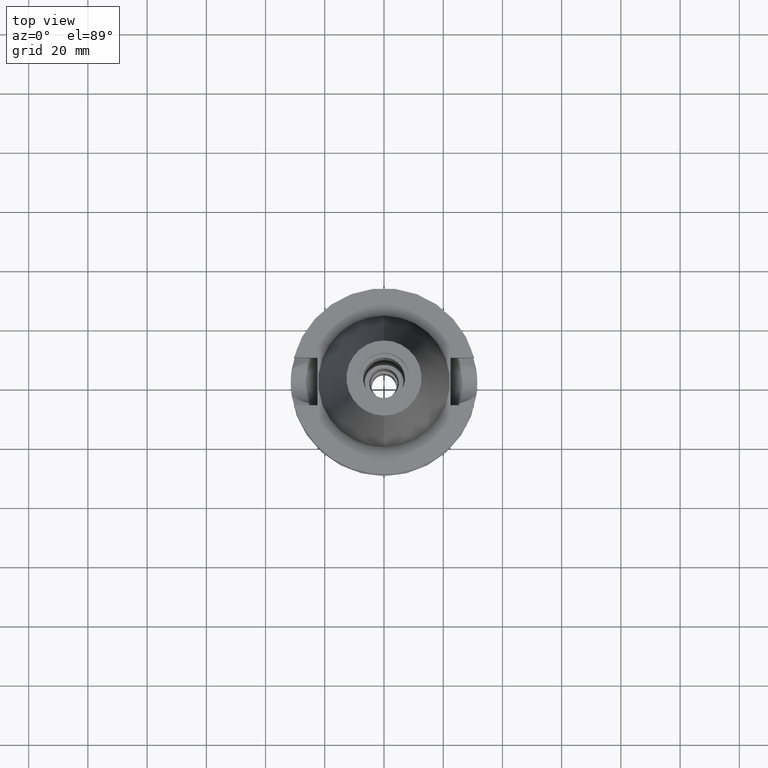
[diagram: clean part render]
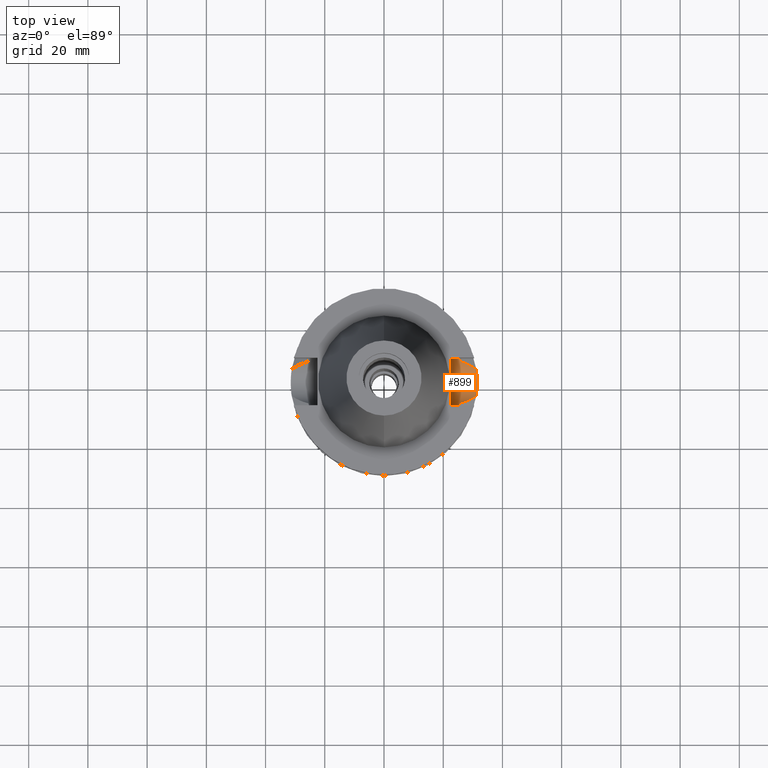
[diagram: same view with one face highlighted and labeled with its STEP entity id]
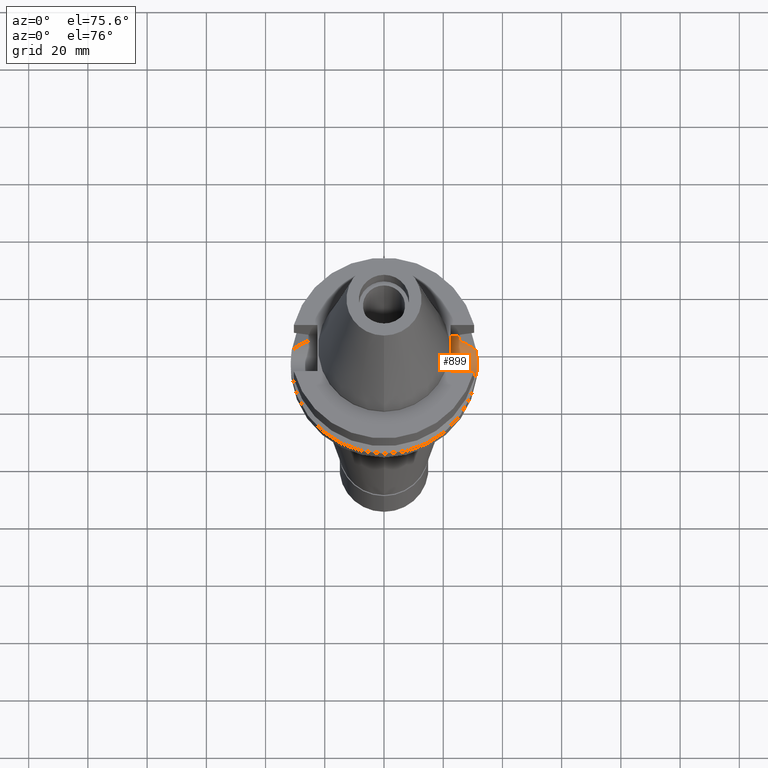
[diagram: same view with one face highlighted and labeled with its STEP entity id]
A machine part, top view. The second image highlights one B-rep face of the part: STEP entity #899.
A second angle (auxiliary view) of the same face is appended — the face is thin or edge-on in the first view.
In plain terms, the highlighted cylindrical surface (edge-blend (fillet) strip) has radius 8.05 mm, axis along (1, 0, 0).
Its self-contained STEP definition (entity closure, byte-faithful):
#8 = CARTESIAN_POINT ( 'NONE',  ( 25.34387967354658855, 7.742345491376021016, -17.15662736174668979 ) ) ;
#23 = CIRCLE ( 'NONE', #2914, 8.050000000000000711 ) ;
#25 = CARTESIAN_POINT ( 'NONE',  ( 25.32419265906722927, 7.806329682138427373, -16.91574545218137615 ) ) ;
#51 = CARTESIAN_POINT ( 'NONE',  ( 31.42560527174269325, 2.162789075934695937, -22.70431026641033867 ) ) ;
#66 = CARTESIAN_POINT ( 'NONE',  ( 31.50000000000000000, 0.0000000000000000000, -23.00000000000000000 ) ) ;
#71 = CARTESIAN_POINT ( 'NONE',  ( 25.31954463780458653, -7.821394976198483562, -16.85491936549449221 ) ) ;
#137 = CARTESIAN_POINT ( 'NONE',  ( 28.60281164125413156, 5.996925309231885493, -20.32023356486955734 ) ) ;
#160 = EDGE_CURVE ( 'NONE', #1030, #1170, #2405, .T. ) ;
#234 = CARTESIAN_POINT ( 'NONE',  ( 25.27269246206562414, 7.973290322427805776, -16.24535685338602775 ) ) ;
#247 = VERTEX_POINT ( 'NONE', #298 ) ;
#249 = B_SPLINE_CURVE_WITH_KNOTS ( 'NONE', 3,
 ( #1088, #2222, #2699, #2061, #390, #3033, #1522, #1263, #2308, #2568, #1502, #2460, #137, #281, #1109, #1010 ),
 .UNSPECIFIED., .F., .F.,
 ( 4, 2, 2, 1, 1, 1, 1, 2, 2, 4 ),
 ( 0.0000000000000000000, 0.2499999999999679701, 0.3749999999999515388, 0.4374999999999436562, 0.4687499999999404365, 0.4843749999999382161, 0.4921874999999374389, 0.4960937499999378275, 0.4999999999999382716, 1.000000000000000000 ),
 .UNSPECIFIED. ) ;
#281 = CARTESIAN_POINT ( 'NONE',  ( 27.72592601166588722, 6.397601523422141057, -19.87227811873450278 ) ) ;
#285 = CARTESIAN_POINT ( 'NONE',  ( 25.30215616128704781, -7.877576232114722465, -16.61085564858986174 ) ) ;
#286 = B_SPLINE_CURVE_WITH_KNOTS ( 'NONE', 3,
 ( #1945, #1015, #1002, #2659, #2937, #1744, #285, #2073, #2988, #71, #828, #2735, #365, #2545 ),
 .UNSPECIFIED., .F., .F.,
 ( 4, 2, 2, 1, 1, 2, 2, 4 ),
 ( 0.0000000000000000000, 0.2499999999999805156, 0.3749999999999708011, 0.4374999999999658051, 0.4687499999999645839, 0.4843749999999652500, 0.4999999999999659162, 1.000000000000000000 ),
 .UNSPECIFIED. ) ;
#298 = CARTESIAN_POINT ( 'NONE',  ( 25.24772266958000344, -8.050000000000000711, -14.94999999999999929 ) ) ;
#311 = CARTESIAN_POINT ( 'NONE',  ( 26.70215822531835315, -6.750114391386322410, -19.34856662920262238 ) ) ;
#365 = CARTESIAN_POINT ( 'NONE',  ( 25.43788636140663684, -7.435506143574531990, -18.11669712823283618 ) ) ;
#390 = CARTESIAN_POINT ( 'NONE',  ( 29.56219469152734192, 5.521670263423405167, -20.81027375416237390 ) ) ;
#392 = ORIENTED_EDGE ( 'NONE', *, *, #1217, .T. ) ;
#407 = VERTEX_POINT ( 'NONE', #777 ) ;
#437 = EDGE_CURVE ( 'NONE', #1170, #902, #249, .T. ) ;
#439 = CARTESIAN_POINT ( 'NONE',  ( 31.50000000000000000, 0.0000000000000000000, -23.00000000000000000 ) ) ;
#447 = CARTESIAN_POINT ( 'NONE',  ( 25.33292553851903151, 7.777985707518505265, -17.02558215514781992 ) ) ;
#449 = CARTESIAN_POINT ( 'NONE',  ( 31.17899877608999759, -4.485536235554000051, -21.63449434733000132 ) ) ;
#458 = CARTESIAN_POINT ( 'NONE',  ( 25.24772266957998923, 8.049999999999998934, -15.58999073683360237 ) ) ;
#471 = CARTESIAN_POINT ( 'NONE',  ( 25.24772266958000344, 8.050000000000000711, -14.94999999999999929 ) ) ;
#483 = ORIENTED_EDGE ( 'NONE', *, *, #2573, .T. ) ;
#550 = LINE ( 'NONE', #1017, #631 ) ;
#616 = CARTESIAN_POINT ( 'NONE',  ( 25.53175183775000079, 7.097862220092999941, -18.74774300138999905 ) ) ;
#631 = VECTOR ( 'NONE', #2752, 1000.000000000000000 ) ;
#637 = CARTESIAN_POINT ( 'NONE',  ( 28.28552704200448531, -6.138958294274154959, -20.15830002520382180 ) ) ;
#640 = CARTESIAN_POINT ( 'NONE',  ( 22.50000000000000000, 8.050000000000000711, -14.94999999999999929 ) ) ;
#659 = DIRECTION ( 'NONE',  ( 1.000000000000000000, -1.551559937893000172E-14, 0.0000000000000000000 ) ) ;
#684 = CARTESIAN_POINT ( 'NONE',  ( 25.44392473217112283, 7.408251102527441567, -18.11706870839242001 ) ) ;
#696 = CARTESIAN_POINT ( 'NONE',  ( 31.41021000377399730, -2.375210906941261246, -22.64161853890440312 ) ) ;
#777 = CARTESIAN_POINT ( 'NONE',  ( 25.24772266958000344, 8.050000000000000711, -14.94999999999999929 ) ) ;
#800 = CARTESIAN_POINT ( 'NONE',  ( 31.41516378268383747, 2.308787884463406215, -22.66181946406065961 ) ) ;
#828 = CARTESIAN_POINT ( 'NONE',  ( 25.32121872273786067, -7.815971166074226595, -16.87703378351241312 ) ) ;
#874 = CARTESIAN_POINT ( 'NONE',  ( 27.74301800859991118, -6.364884219568501145, -19.88114124575123398 ) ) ;
#887 = VERTEX_POINT ( 'NONE', #3059 ) ;
#893 = CARTESIAN_POINT ( 'NONE',  ( 28.65633191492069543, -5.972243074551203179, -20.34767592839260075 ) ) ;
#895 = LINE ( 'NONE', #640, #1749 ) ;
#899 = ADVANCED_FACE ( 'NONE', ( #1133 ), #2562, .F. ) ;
#902 = VERTEX_POINT ( 'NONE', #616 ) ;
#915 = VERTEX_POINT ( 'NONE', #1177 ) ;
#921 = CARTESIAN_POINT ( 'NONE',  ( 29.65996424530777631, -5.506728635295764285, -20.86030170454159816 ) ) ;
#945 = CARTESIAN_POINT ( 'NONE',  ( 31.35447971212115092, -3.025805951426769891, -22.41205623273337366 ) ) ;
#948 = CARTESIAN_POINT ( 'NONE',  ( 25.48481820018147914, 7.266687417059683796, -18.43221401827393890 ) ) ;
#955 = EDGE_CURVE ( 'NONE', #1494, #1030, #1325, .T. ) ;
#1002 = CARTESIAN_POINT ( 'NONE',  ( 25.25396593744603990, -8.030896968456843865, -15.59377931114970828 ) ) ;
#1010 = CARTESIAN_POINT ( 'NONE',  ( 25.53175183775000079, 7.097862220092999941, -18.74774300138999905 ) ) ;
#1014 = CARTESIAN_POINT ( 'NONE',  ( 31.36321233040693812, 3.008498623055367638, -22.44996234363651411 ) ) ;
#1015 = CARTESIAN_POINT ( 'NONE',  ( 25.24772266957999989, -8.050000000000000711, -15.27000127552688902 ) ) ;
#1017 = CARTESIAN_POINT ( 'NONE',  ( 25.24772266958000344, -8.050000000000000711, -14.94999999999999929 ) ) ;
#1029 = CARTESIAN_POINT ( 'NONE',  ( 31.44585372317890304, 1.845677893392021485, -22.78619768337938112 ) ) ;
#1030 = VERTEX_POINT ( 'NONE', #1683 ) ;
#1088 = CARTESIAN_POINT ( 'NONE',  ( 31.17899877608999759, 4.485536235554000051, -21.63449434733000132 ) ) ;
#1109 = CARTESIAN_POINT ( 'NONE',  ( 26.70450526483786291, 6.775492398930444971, -19.35024205771771832 ) ) ;
#1121 = CARTESIAN_POINT ( 'NONE',  ( 31.40779731679545250, -2.407006719656892724, -22.63177601700357755 ) ) ;
#1133 = FACE_OUTER_BOUND ( 'NONE', #1183, .T. ) ;
#1157 = CARTESIAN_POINT ( 'NONE',  ( 31.33669595919548456, -3.204496347468758444, -22.33738104460791618 ) ) ;
#1168 = CARTESIAN_POINT ( 'NONE',  ( 28.48705667065478764, -6.049466865270531457, -20.26122213210803835 ) ) ;
#1170 = VERTEX_POINT ( 'NONE', #1934 ) ;
#1177 = CARTESIAN_POINT ( 'NONE',  ( 22.50000000000000000, -8.050000000000000711, -14.94999999999999929 ) ) ;
#1183 = EDGE_LOOP ( 'NONE', ( #2266, #483, #3035, #2243, #1465, #392, #1949, #2136, #1590 ) ) ;
#1184 = CARTESIAN_POINT ( 'NONE',  ( 31.40202432791514653, -2.481499151029241457, -22.60820932353319535 ) ) ;
#1217 = EDGE_CURVE ( 'NONE', #247, #2786, #286, .T. ) ;
#1256 = DIRECTION ( 'NONE',  ( 0.0000000000000000000, 0.0000000000000000000, -1.000000000000000000 ) ) ;
#1263 = CARTESIAN_POINT ( 'NONE',  ( 28.81573313282441973, 5.897988442795975672, -20.42900607924587675 ) ) ;
#1313 = CARTESIAN_POINT ( 'NONE',  ( 31.49278049642385824, 0.7713483626256416592, -22.97266538105445832 ) ) ;
#1319 = B_SPLINE_CURVE_WITH_KNOTS ( 'NONE', 3,
 ( #2491, #2237, #311, #1615, #874, #1867, #637, #1168, #2133, #3075, #893, #3110, #921, #2627, #449 ),
 .UNSPECIFIED., .F., .F.,
 ( 4, 2, 2, 1, 1, 1, 2, 2, 4 ),
 ( 0.0000000000000000000, 0.2499999999999930611, 0.3749999999999892863, 0.4374999999999873435, 0.4687499999999873990, 0.4843749999999873435, 0.4921874999999876210, 0.4999999999999878986, 1.000000000000000000 ),
 .UNSPECIFIED. ) ;
#1320 = CARTESIAN_POINT ( 'NONE',  ( 22.50000000000000000, 0.0000000000000000000, -14.94999999999999929 ) ) ;
#1325 = B_SPLINE_CURVE_WITH_KNOTS ( 'NONE', 3,
 ( #2633, #2876, #3127, #1157, #945, #2831, #2815, #1184, #1121, #696, #1920, #2615, #2356, #2598, #439 ),
 .UNSPECIFIED., .F., .F.,
 ( 4, 2, 2, 1, 1, 1, 2, 2, 4 ),
 ( 0.0000000000000000000, 0.2500000000000086597, 0.3750000000000125455, 0.4375000000000140443, 0.4687500000000145439, 0.4843750000000148770, 0.4921875000000147105, 0.5000000000000145439, 1.000000000000000000 ),
 .UNSPECIFIED. ) ;
#1328 = CARTESIAN_POINT ( 'NONE',  ( 31.28508993674152805, 3.748095716867494431, -22.12934347073121799 ) ) ;
#1370 = DIRECTION ( 'NONE',  ( 1.000000000000000000, 0.0000000000000000000, 0.0000000000000000000 ) ) ;
#1426 = EDGE_CURVE ( 'NONE', #887, #407, #895, .T. ) ;
#1465 = ORIENTED_EDGE ( 'NONE', *, *, #2723, .F. ) ;
#1494 = VERTEX_POINT ( 'NONE', #2858 ) ;
#1502 = CARTESIAN_POINT ( 'NONE',  ( 28.62765464655353043, 5.985536887177206999, -20.33292463440709241 ) ) ;
#1516 = CARTESIAN_POINT ( 'NONE',  ( 25.53175183775000079, -7.097862220092999941, -18.74774300138999905 ) ) ;
#1522 = CARTESIAN_POINT ( 'NONE',  ( 29.03126866469855472, 5.794592925331757627, -20.53911347226348028 ) ) ;
#1551 = CARTESIAN_POINT ( 'NONE',  ( 31.47112198569543295, 1.356918673325310687, -22.88726535037130105 ) ) ;
#1570 = CARTESIAN_POINT ( 'NONE',  ( 31.41694045739201613, 2.284469817409785719, -22.66905814170703337 ) ) ;
#1590 = ORIENTED_EDGE ( 'NONE', *, *, #160, .T. ) ;
#1615 = CARTESIAN_POINT ( 'NONE',  ( 27.49027690533451818, -6.463065097890634547, -19.75192906158679307 ) ) ;
#1645 = AXIS2_PLACEMENT_3D ( 'NONE', #1848, #1370, #1883 ) ;
#1683 = CARTESIAN_POINT ( 'NONE',  ( 31.50000000000000000, 0.0000000000000000000, -23.00000000000000000 ) ) ;
#1693 = B_SPLINE_CURVE_WITH_KNOTS ( 'NONE', 3,
 ( #2182, #948, #684, #2637, #2438, #1908, #8, #447, #1953, #2467, #25, #234, #458, #471 ),
 .UNSPECIFIED., .F., .F.,
 ( 4, 2, 2, 1, 1, 2, 2, 4 ),
 ( 0.0000000000000000000, 0.2499999999999773515, 0.3749999999999648059, 0.4374999999999586997, 0.4687499999999569789, 0.4843749999999561462, 0.4999999999999552580, 1.000000000000000000 ),
 .UNSPECIFIED. ) ;
#1744 = CARTESIAN_POINT ( 'NONE',  ( 25.29454717857531776, -7.902012029789245773, -16.48868902742446707 ) ) ;
#1749 = VECTOR ( 'NONE', #659, 1000.000000000000000 ) ;
#1782 = CARTESIAN_POINT ( 'NONE',  ( 31.46209760622523177, 1.552528018158971346, -22.85140752204677028 ) ) ;
#1800 = CARTESIAN_POINT ( 'NONE',  ( 31.43705495319547438, 1.992185818798754005, -22.75073800056819451 ) ) ;
#1848 = CARTESIAN_POINT ( 'NONE',  ( 22.50000000000000000, 0.0000000000000000000, -14.94999999999999929 ) ) ;
#1867 = CARTESIAN_POINT ( 'NONE',  ( 28.10718197838794552, -6.214745426874604739, -20.06720534644217935 ) ) ;
#1883 = DIRECTION ( 'NONE',  ( 0.0000000000000000000, 0.0000000000000000000, -1.000000000000000000 ) ) ;
#1895 = EDGE_CURVE ( 'NONE', #2786, #1494, #1319, .T. ) ;
#1908 = CARTESIAN_POINT ( 'NONE',  ( 25.35411833098577716, 7.708843546321432427, -17.27003765534289670 ) ) ;
#1920 = CARTESIAN_POINT ( 'NONE',  ( 31.41180480595681601, -2.354042824037043680, -22.64812347153969441 ) ) ;
#1934 = CARTESIAN_POINT ( 'NONE',  ( 31.17899877608999759, 4.485536235554000051, -21.63449434733000132 ) ) ;
#1945 = CARTESIAN_POINT ( 'NONE',  ( 25.24772266958000344, -8.050000000000000711, -14.94999999999999929 ) ) ;
#1949 = ORIENTED_EDGE ( 'NONE', *, *, #1895, .T. ) ;
#1953 = CARTESIAN_POINT ( 'NONE',  ( 25.32844325893252702, 7.792538688759799825, -16.96970524096439448 ) ) ;
#2009 = CARTESIAN_POINT ( 'NONE',  ( 31.41958431856492595, 2.247983644794284253, -22.67982499013486475 ) ) ;
#2061 = CARTESIAN_POINT ( 'NONE',  ( 29.78700575398574202, 5.397180858876430953, -20.92503740198982243 ) ) ;
#2073 = CARTESIAN_POINT ( 'NONE',  ( 25.31205759391835386, -7.845621557329836016, -16.75326793494518540 ) ) ;
#2133 = CARTESIAN_POINT ( 'NONE',  ( 28.58618658192103723, -6.004475021274326529, -20.31184964848478458 ) ) ;
#2136 = ORIENTED_EDGE ( 'NONE', *, *, #955, .T. ) ;
#2182 = CARTESIAN_POINT ( 'NONE',  ( 25.53175183775000079, 7.097862220092999941, -18.74774300138999905 ) ) ;
#2222 = CARTESIAN_POINT ( 'NONE',  ( 30.82500002754404989, 4.754103986742489241, -21.45427572239905345 ) ) ;
#2237 = CARTESIAN_POINT ( 'NONE',  ( 26.13688527834753472, -6.931521406652682238, -19.05862874982803490 ) ) ;
#2239 = CARTESIAN_POINT ( 'NONE',  ( 31.50000000000000000, 0.3826895716439381867, -23.00000000000000000 ) ) ;
#2243 = ORIENTED_EDGE ( 'NONE', *, *, #2725, .T. ) ;
#2266 = ORIENTED_EDGE ( 'NONE', *, *, #437, .T. ) ;
#2281 = DIRECTION ( 'NONE',  ( -1.000000000000000000, 0.0000000000000000000, 0.0000000000000000000 ) ) ;
#2308 = CARTESIAN_POINT ( 'NONE',  ( 28.70639654586876688, 5.949181649240762759, -20.37315035915040440 ) ) ;
#2356 = CARTESIAN_POINT ( 'NONE',  ( 31.47112637481176733, -1.555232885073464244, -22.89002501774976395 ) ) ;
#2405 = B_SPLINE_CURVE_WITH_KNOTS ( 'NONE', 3,
 ( #66, #2239, #1313, #1551, #1782, #1029, #1800, #51, #2009, #1570, #800, #2529, #1014, #1328, #2951 ),
 .UNSPECIFIED., .F., .F.,
 ( 4, 2, 2, 1, 1, 1, 2, 2, 4 ),
 ( 0.0000000000000000000, 0.2500000000000069389, 0.3750000000000104361, 0.4375000000000123790, 0.4687500000000129341, 0.4843750000000133782, 0.4921875000000133227, 0.5000000000000132117, 1.000000000000000000 ),
 .UNSPECIFIED. ) ;
#2438 = CARTESIAN_POINT ( 'NONE',  ( 25.37572817765628841, 7.637723572231249314, -17.49814693643546448 ) ) ;
#2460 = CARTESIAN_POINT ( 'NONE',  ( 28.61184836972432421, 5.992788765738430889, -20.32484997527419779 ) ) ;
#2467 = CARTESIAN_POINT ( 'NONE',  ( 25.32550226136618932, 7.802082245155967932, -16.93251888162995655 ) ) ;
#2491 = CARTESIAN_POINT ( 'NONE',  ( 25.53175183775000079, -7.097862220092999941, -18.74774300138999905 ) ) ;
#2529 = CARTESIAN_POINT ( 'NONE',  ( 31.41414960750311991, 2.322543565508484953, -22.65768531844235767 ) ) ;
#2545 = CARTESIAN_POINT ( 'NONE',  ( 25.53175183775000079, -7.097862220092999941, -18.74774300138999905 ) ) ;
#2562 = CYLINDRICAL_SURFACE ( 'NONE', #1645, 8.050000000000000711 ) ;
#2568 = CARTESIAN_POINT ( 'NONE',  ( 28.65133604713629722, 5.974649765473988516, -20.34502234669273335 ) ) ;
#2573 = EDGE_CURVE ( 'NONE', #902, #407, #1693, .T. ) ;
#2598 = CARTESIAN_POINT ( 'NONE',  ( 31.49999999999999289, -0.7653601870025212861, -23.00000000000000000 ) ) ;
#2615 = CARTESIAN_POINT ( 'NONE',  ( 31.41247682364817351, -2.345069939847811646, -22.65086411841178560 ) ) ;
#2627 = CARTESIAN_POINT ( 'NONE',  ( 30.49155498473288262, -5.007078285841039644, -21.28452086491701678 ) ) ;
#2633 = CARTESIAN_POINT ( 'NONE',  ( 31.17899877608999759, -4.485536235554000051, -21.63449434733000132 ) ) ;
#2637 = CARTESIAN_POINT ( 'NONE',  ( 25.39164478449283635, 7.584820969905358368, -17.65194245033610088 ) ) ;
#2659 = CARTESIAN_POINT ( 'NONE',  ( 25.27269574104416350, -7.971769475022774998, -16.08146184953516311 ) ) ;
#2699 = CARTESIAN_POINT ( 'NONE',  ( 30.43275192844973631, 5.016829705554554764, -21.25447875877641479 ) ) ;
#2723 = EDGE_CURVE ( 'NONE', #247, #915, #550, .T. ) ;
#2725 = EDGE_CURVE ( 'NONE', #887, #915, #23, .T. ) ;
#2735 = CARTESIAN_POINT ( 'NONE',  ( 25.36818304348079778, -7.663708172131628693, -17.48836484279746628 ) ) ;
#2752 = DIRECTION ( 'NONE',  ( -1.000000000000000000, -1.551559937893000172E-14, 0.0000000000000000000 ) ) ;
#2786 = VERTEX_POINT ( 'NONE', #1516 ) ;
#2815 = CARTESIAN_POINT ( 'NONE',  ( 31.38990480643320069, -2.631663214214757573, -22.55863313245254176 ) ) ;
#2831 = CARTESIAN_POINT ( 'NONE',  ( 31.37853342735496298, -2.762293134760197777, -22.51181577775455622 ) ) ;
#2858 = CARTESIAN_POINT ( 'NONE',  ( 31.17899877608999759, -4.485536235554000051, -21.63449434733000132 ) ) ;
#2876 = CARTESIAN_POINT ( 'NONE',  ( 31.23204570963914151, -4.116806569975640429, -21.88192522095453185 ) ) ;
#2914 = AXIS2_PLACEMENT_3D ( 'NONE', #1320, #2281, #1256 ) ;
#2937 = CARTESIAN_POINT ( 'NONE',  ( 25.28049982587672062, -7.946985634402431664, -16.24435369772057314 ) ) ;
#2951 = CARTESIAN_POINT ( 'NONE',  ( 31.17899877608999759, 4.485536235554000051, -21.63449434733000132 ) ) ;
#2988 = CARTESIAN_POINT ( 'NONE',  ( 25.31652055493196940, -7.831184758220203435, -16.81426458566332016 ) ) ;
#3033 = CARTESIAN_POINT ( 'NONE',  ( 29.21063459138408547, 5.704302580970186831, -20.63073233022483066 ) ) ;
#3035 = ORIENTED_EDGE ( 'NONE', *, *, #1426, .F. ) ;
#3059 = CARTESIAN_POINT ( 'NONE',  ( 22.50000000000000000, 8.050000000000000711, -14.94999999999999929 ) ) ;
#3075 = CARTESIAN_POINT ( 'NONE',  ( 28.62832049323680295, -5.985142415639562508, -20.33336911552476778 ) ) ;
#3110 = CARTESIAN_POINT ( 'NONE',  ( 28.66898065644760152, -5.966399313622371636, -20.35413636776569035 ) ) ;
#3127 = CARTESIAN_POINT ( 'NONE',  ( 31.27810087210916734, -3.746788054415208791, -22.08602560477354260 ) ) ;